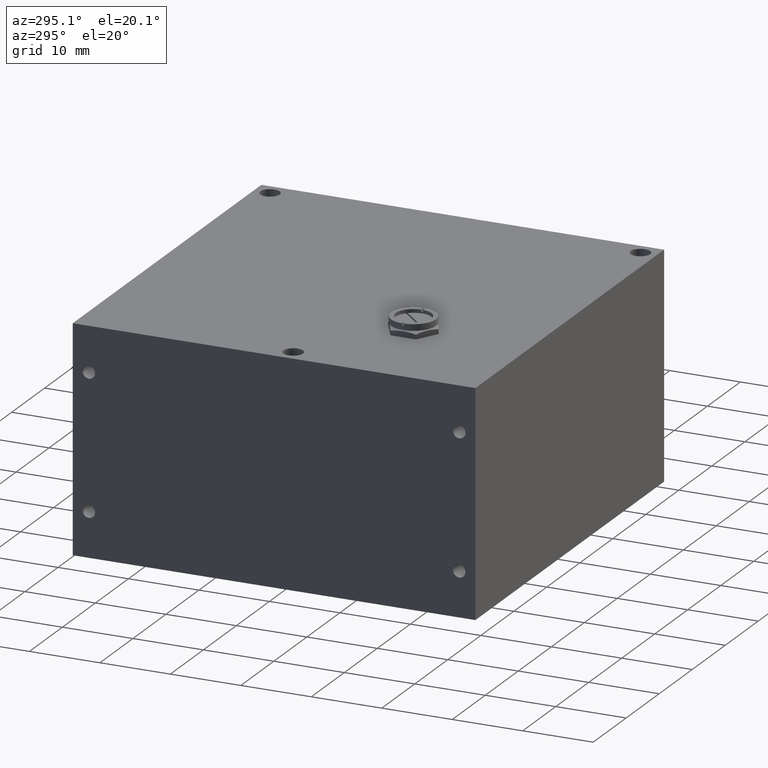
[diagram: clean part render]
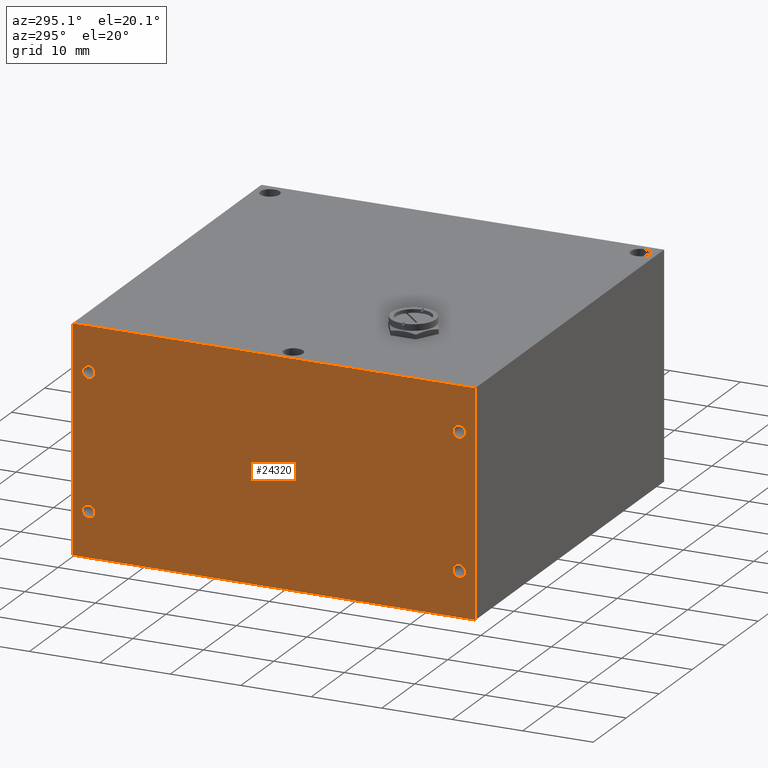
[diagram: same view with one face highlighted and labeled with its STEP entity id]
A machine part, auxiliary view. The second image highlights one B-rep face of the part: STEP entity #24320.
In plain terms, the highlighted planar face has unit normal (1, 0, 0).
Its self-contained STEP definition (entity closure, byte-faithful):
#110 = VERTEX_POINT ( 'NONE', #11794 ) ;
#365 = CARTESIAN_POINT ( 'NONE',  ( -1.125000000000000000, 1.034999999999999900, 0.2849999999999993100 ) ) ;
#716 = VECTOR ( 'NONE', #11433, 39.37007874015748100 ) ;
#954 = DIRECTION ( 'NONE',  ( 0.0000000000000000000, 0.0000000000000000000, -1.000000000000000000 ) ) ;
#1136 = EDGE_CURVE ( 'NONE', #2203, #24634, #35445, .T. ) ;
#1232 = CARTESIAN_POINT ( 'NONE',  ( -1.125000000000000000, 1.034999999999999900, 0.2150000000000000200 ) ) ;
#2203 = VERTEX_POINT ( 'NONE', #4138 ) ;
#2246 = CARTESIAN_POINT ( 'NONE',  ( -1.125000000000000000, 1.124999999999999800, 1.250000000000000000 ) ) ;
#2415 = EDGE_LOOP ( 'NONE', ( #6990, #6284 ) ) ;
#2729 = CIRCLE ( 'NONE', #32640, 0.03499999999999949000 ) ;
#3171 = ORIENTED_EDGE ( 'NONE', *, *, #34409, .T. ) ;
#3320 = EDGE_LOOP ( 'NONE', ( #12050, #25533 ) ) ;
#3978 = CARTESIAN_POINT ( 'NONE',  ( -1.125000000000000000, 1.034999999999999900, 0.2499999999999996700 ) ) ;
#4138 = CARTESIAN_POINT ( 'NONE',  ( -1.125000000000000000, 1.124999999999999800, 0.0000000000000000000 ) ) ;
#4199 = CARTESIAN_POINT ( 'NONE',  ( -1.125000000000000000, -1.034999999999999900, 0.2500000000000001100 ) ) ;
#4459 = FACE_BOUND ( 'NONE', #33719, .T. ) ;
#5608 = DIRECTION ( 'NONE',  ( -0.0000000000000000000, -1.000000000000000000, -0.0000000000000000000 ) ) ;
#5716 = CARTESIAN_POINT ( 'NONE',  ( -1.125000000000000000, -1.125000000000000200, 0.0000000000000000000 ) ) ;
#5777 = DIRECTION ( 'NONE',  ( 0.0000000000000000000, 0.0000000000000000000, 1.000000000000000000 ) ) ;
#6284 = ORIENTED_EDGE ( 'NONE', *, *, #26429, .F. ) ;
#6352 = CIRCLE ( 'NONE', #11559, 0.03499999999999949000 ) ;
#6939 = ORIENTED_EDGE ( 'NONE', *, *, #31783, .F. ) ;
#6990 = ORIENTED_EDGE ( 'NONE', *, *, #23089, .F. ) ;
#7258 = DIRECTION ( 'NONE',  ( -1.000000000000000000, -0.0000000000000000000, -0.0000000000000000000 ) ) ;
#7274 = VERTEX_POINT ( 'NONE', #36514 ) ;
#7334 = PLANE ( 'NONE',  #20301 ) ;
#7573 = VECTOR ( 'NONE', #5608, 39.37007874015748100 ) ;
#7615 = CIRCLE ( 'NONE', #19065, 0.03499999999999949000 ) ;
#7831 = AXIS2_PLACEMENT_3D ( 'NONE', #39303, #27315, #8839 ) ;
#7893 = DIRECTION ( 'NONE',  ( 0.0000000000000000000, 0.0000000000000000000, 1.000000000000000000 ) ) ;
#7992 = ORIENTED_EDGE ( 'NONE', *, *, #1136, .T. ) ;
#8382 = CARTESIAN_POINT ( 'NONE',  ( -1.125000000000000000, -1.125000000000000200, 1.250000000000000000 ) ) ;
#8498 = CARTESIAN_POINT ( 'NONE',  ( -1.125000000000000000, 1.034999999999999900, 0.9650000000000004100 ) ) ;
#8570 = CARTESIAN_POINT ( 'NONE',  ( -1.125000000000000000, 1.034999999999999900, 0.2499999999999996700 ) ) ;
#8665 = LINE ( 'NONE', #17084, #28159 ) ;
#8755 = FACE_BOUND ( 'NONE', #2415, .T. ) ;
#8839 = DIRECTION ( 'NONE',  ( 0.0000000000000000000, 0.0000000000000000000, 1.000000000000000000 ) ) ;
#9362 = DIRECTION ( 'NONE',  ( -1.000000000000000000, -0.0000000000000000000, -0.0000000000000000000 ) ) ;
#9513 = LINE ( 'NONE', #23998, #7573 ) ;
#10280 = VECTOR ( 'NONE', #10403, 39.37007874015748100 ) ;
#10403 = DIRECTION ( 'NONE',  ( -0.0000000000000000000, -1.000000000000000000, -0.0000000000000000000 ) ) ;
#10798 = CARTESIAN_POINT ( 'NONE',  ( -1.125000000000000000, -1.034999999999999700, 0.9650000000000007500 ) ) ;
#10799 = DIRECTION ( 'NONE',  ( -1.000000000000000000, -0.0000000000000000000, -0.0000000000000000000 ) ) ;
#11433 = DIRECTION ( 'NONE',  ( -0.0000000000000000000, -0.0000000000000000000, -1.000000000000000000 ) ) ;
#11548 = CIRCLE ( 'NONE', #17916, 0.03499999999999962900 ) ;
#11559 = AXIS2_PLACEMENT_3D ( 'NONE', #27550, #9362, #21246 ) ;
#11688 = EDGE_CURVE ( 'NONE', #28734, #13878, #11548, .T. ) ;
#11794 = CARTESIAN_POINT ( 'NONE',  ( -1.125000000000000000, 1.034999999999999900, 1.034999999999999300 ) ) ;
#12050 = ORIENTED_EDGE ( 'NONE', *, *, #16799, .F. ) ;
#13156 = EDGE_LOOP ( 'NONE', ( #7992, #6939, #32123, #3171 ) ) ;
#13878 = VERTEX_POINT ( 'NONE', #33291 ) ;
#14476 = DIRECTION ( 'NONE',  ( -1.000000000000000000, -0.0000000000000000000, -0.0000000000000000000 ) ) ;
#14765 = AXIS2_PLACEMENT_3D ( 'NONE', #8570, #14476, #5777 ) ;
#16545 = ORIENTED_EDGE ( 'NONE', *, *, #35277, .F. ) ;
#16567 = DIRECTION ( 'NONE',  ( 1.000000000000000000, 0.0000000000000000000, 0.0000000000000000000 ) ) ;
#16799 = EDGE_CURVE ( 'NONE', #18975, #19030, #7615, .T. ) ;
#16952 = LINE ( 'NONE', #8382, #716 ) ;
#17084 = CARTESIAN_POINT ( 'NONE',  ( -1.125000000000000000, 1.124999999999999800, 1.250000000000000000 ) ) ;
#17178 = AXIS2_PLACEMENT_3D ( 'NONE', #4199, #7258, #19405 ) ;
#17200 = CIRCLE ( 'NONE', #36719, 0.03499999999999962900 ) ;
#17271 = CARTESIAN_POINT ( 'NONE',  ( -1.125000000000000000, 1.034999999999999900, 0.9999999999999998900 ) ) ;
#17394 = CARTESIAN_POINT ( 'NONE',  ( -1.125000000000000000, -1.034999999999999700, 1.000000000000000200 ) ) ;
#17403 = EDGE_CURVE ( 'NONE', #36140, #7274, #9513, .T. ) ;
#17916 = AXIS2_PLACEMENT_3D ( 'NONE', #20277, #29236, #35174 ) ;
#18975 = VERTEX_POINT ( 'NONE', #34686 ) ;
#19030 = VERTEX_POINT ( 'NONE', #10798 ) ;
#19065 = AXIS2_PLACEMENT_3D ( 'NONE', #17394, #10799, #7893 ) ;
#19405 = DIRECTION ( 'NONE',  ( 0.0000000000000000000, 0.0000000000000000000, 1.000000000000000000 ) ) ;
#20277 = CARTESIAN_POINT ( 'NONE',  ( -1.125000000000000000, -1.034999999999999900, 0.2500000000000001100 ) ) ;
#20301 = AXIS2_PLACEMENT_3D ( 'NONE', #25556, #16567, #954 ) ;
#20823 = EDGE_CURVE ( 'NONE', #13878, #28734, #21567, .T. ) ;
#21246 = DIRECTION ( 'NONE',  ( 0.0000000000000000000, 0.0000000000000000000, 1.000000000000000000 ) ) ;
#21508 = VERTEX_POINT ( 'NONE', #1232 ) ;
#21567 = CIRCLE ( 'NONE', #17178, 0.03499999999999962900 ) ;
#21649 = FACE_OUTER_BOUND ( 'NONE', #13156, .T. ) ;
#22207 = CIRCLE ( 'NONE', #7831, 0.03499999999999949000 ) ;
#22373 = DIRECTION ( 'NONE',  ( -1.000000000000000000, -0.0000000000000000000, -0.0000000000000000000 ) ) ;
#23089 = EDGE_CURVE ( 'NONE', #30959, #21508, #17200, .T. ) ;
#23809 = CIRCLE ( 'NONE', #14765, 0.03499999999999962900 ) ;
#23998 = CARTESIAN_POINT ( 'NONE',  ( -1.125000000000000000, -1.125000000000000200, 1.250000000000000000 ) ) ;
#24320 = ADVANCED_FACE ( 'NONE', ( #30137, #8755, #37679, #4459, #21649 ), #7334, .F. ) ;
#24634 = VERTEX_POINT ( 'NONE', #5716 ) ;
#25533 = ORIENTED_EDGE ( 'NONE', *, *, #38682, .F. ) ;
#25556 = CARTESIAN_POINT ( 'NONE',  ( -1.125000000000000000, -1.125000000000000200, 1.250000000000000000 ) ) ;
#25590 = CARTESIAN_POINT ( 'NONE',  ( -1.125000000000000000, -1.034999999999999900, 0.2849999999999997500 ) ) ;
#25995 = DIRECTION ( 'NONE',  ( -1.000000000000000000, -0.0000000000000000000, -0.0000000000000000000 ) ) ;
#26429 = EDGE_CURVE ( 'NONE', #21508, #30959, #23809, .T. ) ;
#27315 = DIRECTION ( 'NONE',  ( -1.000000000000000000, -0.0000000000000000000, -0.0000000000000000000 ) ) ;
#27550 = CARTESIAN_POINT ( 'NONE',  ( -1.125000000000000000, 1.034999999999999900, 0.9999999999999998900 ) ) ;
#28159 = VECTOR ( 'NONE', #32291, 39.37007874015748100 ) ;
#28734 = VERTEX_POINT ( 'NONE', #25590 ) ;
#28786 = EDGE_CURVE ( 'NONE', #110, #39140, #2729, .T. ) ;
#29236 = DIRECTION ( 'NONE',  ( -1.000000000000000000, -0.0000000000000000000, -0.0000000000000000000 ) ) ;
#30137 = FACE_BOUND ( 'NONE', #36322, .T. ) ;
#30959 = VERTEX_POINT ( 'NONE', #365 ) ;
#31373 = ORIENTED_EDGE ( 'NONE', *, *, #28786, .F. ) ;
#31783 = EDGE_CURVE ( 'NONE', #7274, #24634, #16952, .T. ) ;
#32123 = ORIENTED_EDGE ( 'NONE', *, *, #17403, .F. ) ;
#32291 = DIRECTION ( 'NONE',  ( -0.0000000000000000000, -0.0000000000000000000, -1.000000000000000000 ) ) ;
#32599 = DIRECTION ( 'NONE',  ( 0.0000000000000000000, 0.0000000000000000000, 1.000000000000000000 ) ) ;
#32640 = AXIS2_PLACEMENT_3D ( 'NONE', #17271, #25995, #32599 ) ;
#33291 = CARTESIAN_POINT ( 'NONE',  ( -1.125000000000000000, -1.034999999999999900, 0.2150000000000005000 ) ) ;
#33719 = EDGE_LOOP ( 'NONE', ( #36677, #35832 ) ) ;
#34409 = EDGE_CURVE ( 'NONE', #36140, #2203, #8665, .T. ) ;
#34620 = DIRECTION ( 'NONE',  ( 0.0000000000000000000, 0.0000000000000000000, 1.000000000000000000 ) ) ;
#34686 = CARTESIAN_POINT ( 'NONE',  ( -1.125000000000000000, -1.034999999999999700, 1.034999999999999700 ) ) ;
#35174 = DIRECTION ( 'NONE',  ( 0.0000000000000000000, 0.0000000000000000000, 1.000000000000000000 ) ) ;
#35277 = EDGE_CURVE ( 'NONE', #39140, #110, #6352, .T. ) ;
#35445 = LINE ( 'NONE', #37594, #10280 ) ;
#35832 = ORIENTED_EDGE ( 'NONE', *, *, #20823, .F. ) ;
#36140 = VERTEX_POINT ( 'NONE', #2246 ) ;
#36322 = EDGE_LOOP ( 'NONE', ( #31373, #16545 ) ) ;
#36514 = CARTESIAN_POINT ( 'NONE',  ( -1.125000000000000000, -1.125000000000000200, 1.250000000000000000 ) ) ;
#36677 = ORIENTED_EDGE ( 'NONE', *, *, #11688, .F. ) ;
#36719 = AXIS2_PLACEMENT_3D ( 'NONE', #3978, #22373, #34620 ) ;
#37594 = CARTESIAN_POINT ( 'NONE',  ( -1.125000000000000000, -1.125000000000000200, 0.0000000000000000000 ) ) ;
#37679 = FACE_BOUND ( 'NONE', #3320, .T. ) ;
#38682 = EDGE_CURVE ( 'NONE', #19030, #18975, #22207, .T. ) ;
#39140 = VERTEX_POINT ( 'NONE', #8498 ) ;
#39303 = CARTESIAN_POINT ( 'NONE',  ( -1.125000000000000000, -1.034999999999999700, 1.000000000000000200 ) ) ;